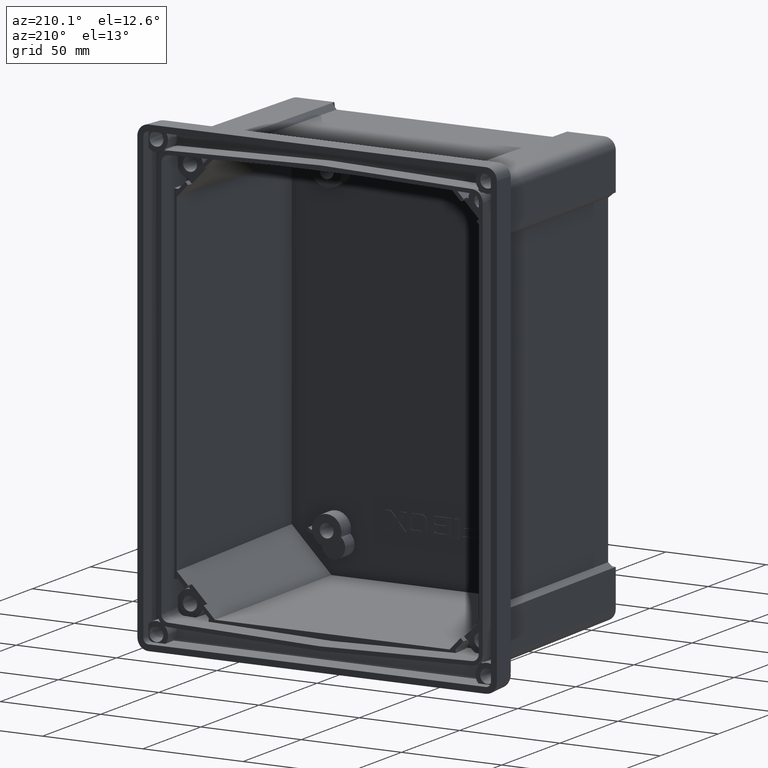
[diagram: clean part render]
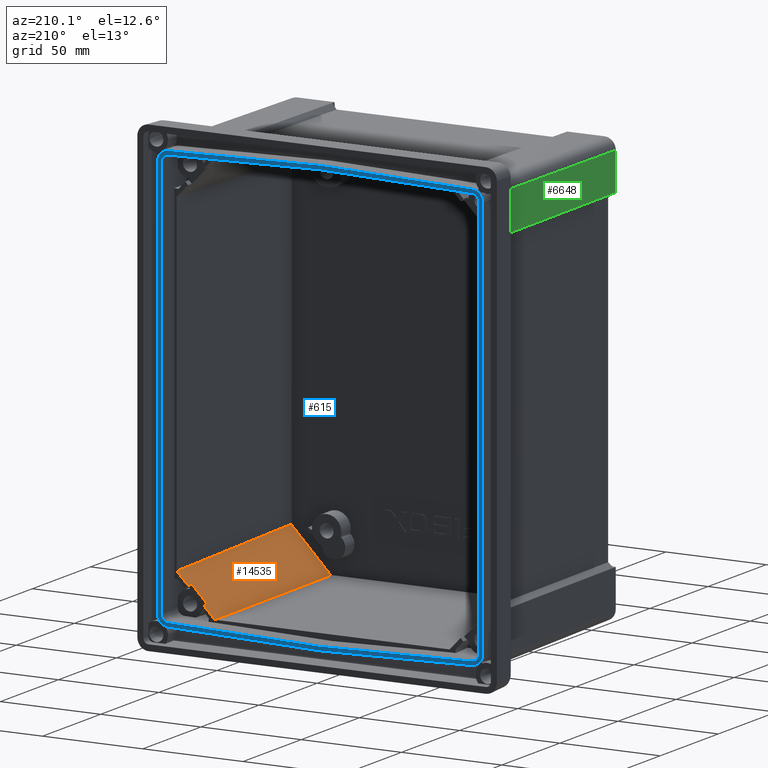
[diagram: same view with three faces highlighted in distinct colors, each labeled with its STEP entity id]
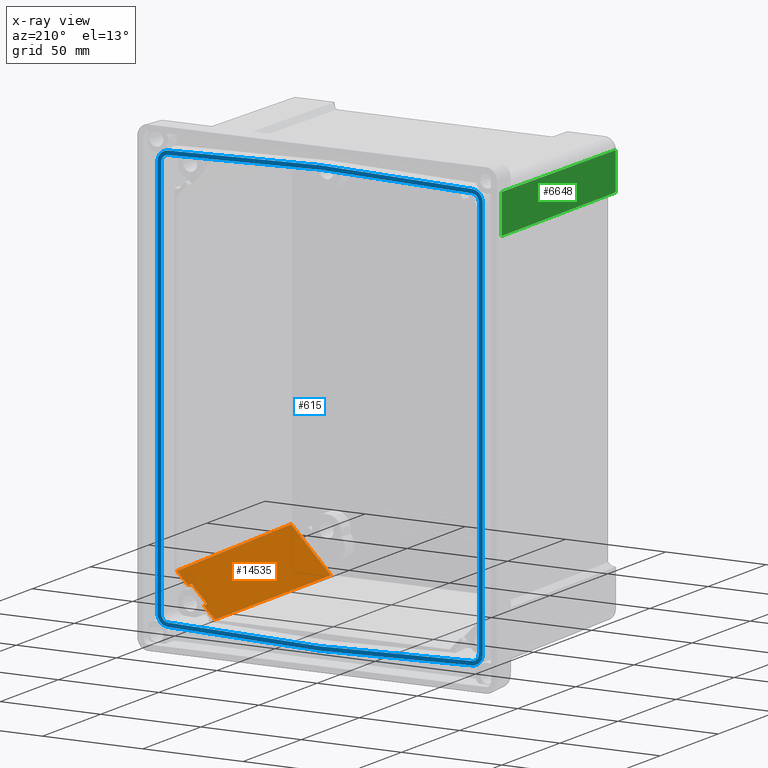
[diagram: x-ray of the same camera — body ghosted, the three highlighted faces saturated]
A machine part, auxiliary view with three faces highlighted in distinct colors.
The next image is the same camera in x-ray (body ghosted, the three faces saturated) — at least one of them is partly hidden behind the body in this view.
Their STEP definitions:

[orange] entity #14535 — the highlighted planar face has unit normal (-0.7149, 0.0262, 0.6987).
#189 = VECTOR ( 'NONE', #8761, 1000.000000000000000 ) ;
#374 = CARTESIAN_POINT ( 'NONE',  ( 71.74645088788184900, -15.93125922395892000, -88.50474010267190300 ) ) ;
#436 = ORIENTED_EDGE ( 'NONE', *, *, #12960, .T. ) ;
#681 = LINE ( 'NONE', #2240, #15660 ) ;
#691 = LINE ( 'NONE', #13967, #13364 ) ;
#1418 = CARTESIAN_POINT ( 'NONE',  ( 77.91777170987691600, -12.93125922395891800, -82.30229086239377500 ) ) ;
#1467 = EDGE_CURVE ( 'NONE', #4963, #8883, #8452, .T. ) ;
#1985 = DIRECTION ( 'NONE',  ( -0.6989326026834157300, 0.0000000000000000000, -0.7151875396748649200 ) ) ;
#2142 = ORIENTED_EDGE ( 'NONE', *, *, #12260, .F. ) ;
#2240 = CARTESIAN_POINT ( 'NONE',  ( 67.77086531583226800, -108.5453820889968300, -89.10294242560385700 ) ) ;
#2428 = DIRECTION ( 'NONE',  ( 0.6989326026834152800, 0.0000000000000000000, 0.7151875396748653700 ) ) ;
#2908 = DIRECTION ( 'NONE',  ( -0.6989326026834157300, 0.0000000000000000000, -0.7151875396748649200 ) ) ;
#3169 = EDGE_CURVE ( 'NONE', #4371, #8883, #691, .T. ) ;
#3431 = VERTEX_POINT ( 'NONE', #13946 ) ;
#3542 = DIRECTION ( 'NONE',  ( -0.005885744236630351600, 0.9990381704227669900, -0.04345218122386270600 ) ) ;
#3786 = EDGE_CURVE ( 'NONE', #15560, #9001, #681, .T. ) ;
#4035 = LINE ( 'NONE', #14150, #9812 ) ;
#4114 = CARTESIAN_POINT ( 'NONE',  ( 58.51397801082989500, -12.93125922395891600, -102.1573547450924600 ) ) ;
#4243 = VERTEX_POINT ( 'NONE', #13128 ) ;
#4371 = VERTEX_POINT ( 'NONE', #4944 ) ;
#4787 = CARTESIAN_POINT ( 'NONE',  ( 77.51911382571967100, -10.21845775423358100, -82.81185695860109800 ) ) ;
#4872 = DIRECTION ( 'NONE',  ( -0.7149424627672257300, 0.02617694830787320800, 0.6986930959367074800 ) ) ;
#4938 = ORIENTED_EDGE ( 'NONE', *, *, #3169, .F. ) ;
#4944 = CARTESIAN_POINT ( 'NONE',  ( 76.13977366615753800, -109.0000000000000000, -80.52236750497517900 ) ) ;
#4960 = PLANE ( 'NONE',  #6419 ) ;
#4963 = VERTEX_POINT ( 'NONE', #4114 ) ;
#5277 = VECTOR ( 'NONE', #2428, 1000.000000000000000 ) ;
#5519 = DIRECTION ( 'NONE',  ( 0.6989326026834152800, 0.0000000000000000000, 0.7151875396748653700 ) ) ;
#6259 = CARTESIAN_POINT ( 'NONE',  ( 56.36925812659018900, -106.3103238748581700, -100.8534523053544900 ) ) ;
#6280 = CARTESIAN_POINT ( 'NONE',  ( 76.94623611792631800, -109.0000000000000000, -79.69714931583038700 ) ) ;
#6419 = AXIS2_PLACEMENT_3D ( 'NONE', #6280, #4872, #9756 ) ;
#6437 = ORIENTED_EDGE ( 'NONE', *, *, #3786, .T. ) ;
#6587 = EDGE_CURVE ( 'NONE', #4243, #4371, #11541, .T. ) ;
#6766 = CARTESIAN_POINT ( 'NONE',  ( 64.04718476576837800, -12.93125922395892000, -96.49546329749999500 ) ) ;
#6885 = ORIENTED_EDGE ( 'NONE', *, *, #1467, .T. ) ;
#7584 = EDGE_LOOP ( 'NONE', ( #11467, #8855, #6885, #4938, #7964, #2142, #6437, #436 ) ) ;
#7883 = LINE ( 'NONE', #8518, #10369 ) ;
#7964 = ORIENTED_EDGE ( 'NONE', *, *, #6587, .F. ) ;
#8452 = LINE ( 'NONE', #6259, #189 ) ;
#8484 = EDGE_CURVE ( 'NONE', #3431, #15772, #7883, .T. ) ;
#8501 = FACE_OUTER_BOUND ( 'NONE', #7584, .T. ) ;
#8518 = CARTESIAN_POINT ( 'NONE',  ( 64.61681994109977700, -109.6203541781330100, -92.29006634600800400 ) ) ;
#8525 = DIRECTION ( 'NONE',  ( -0.01395843242726290700, -0.9996341170375635500, 0.02316881996788464100 ) ) ;
#8761 = DIRECTION ( 'NONE',  ( -0.02295959514164697500, -0.9996389434559233000, 0.01395849982115559100 ) ) ;
#8855 = ORIENTED_EDGE ( 'NONE', *, *, #15817, .F. ) ;
#8883 = VERTEX_POINT ( 'NONE', #15689 ) ;
#9001 = VERTEX_POINT ( 'NONE', #374 ) ;
#9687 = LINE ( 'NONE', #11697, #15257 ) ;
#9756 = DIRECTION ( 'NONE',  ( 0.6989326026834157300, 0.0000000000000000000, 0.7151875396748649200 ) ) ;
#9759 = DIRECTION ( 'NONE',  ( -0.04288595471862213800, -0.9990591341861797500, -0.006453006046253639700 ) ) ;
#9812 = VECTOR ( 'NONE', #5519, 1000.000000000000000 ) ;
#10369 = VECTOR ( 'NONE', #3542, 1000.000000000000100 ) ;
#11467 = ORIENTED_EDGE ( 'NONE', *, *, #8484, .T. ) ;
#11541 = LINE ( 'NONE', #4787, #12111 ) ;
#11697 = CARTESIAN_POINT ( 'NONE',  ( 78.68921305288319000, -15.93125922395892300, -81.40051149426037100 ) ) ;
#12111 = VECTOR ( 'NONE', #8525, 1000.000000000000000 ) ;
#12260 = EDGE_CURVE ( 'NONE', #15560, #4243, #13363, .T. ) ;
#12960 = EDGE_CURVE ( 'NONE', #9001, #3431, #9687, .T. ) ;
#13128 = CARTESIAN_POINT ( 'NONE',  ( 77.48123350995378200, -12.93125922395891800, -82.74898154469769900 ) ) ;
#13172 = CARTESIAN_POINT ( 'NONE',  ( 71.87522991582264400, -12.93125922395892000, -88.48536285314149600 ) ) ;
#13363 = LINE ( 'NONE', #1418, #5277 ) ;
#13364 = VECTOR ( 'NONE', #2908, 1000.000000000000000 ) ;
#13946 = CARTESIAN_POINT ( 'NONE',  ( 64.06485899807766800, -15.93125922395892000, -96.36498125233806900 ) ) ;
#13967 = CARTESIAN_POINT ( 'NONE',  ( 76.94623611792631800, -109.0000000000000000, -79.69714931583038700 ) ) ;
#14150 = CARTESIAN_POINT ( 'NONE',  ( 77.91777170987691600, -12.93125922395891800, -82.30229086239377500 ) ) ;
#14535 = ADVANCED_FACE ( 'NONE', ( #8501 ), #4960, .T. ) ;
#15257 = VECTOR ( 'NONE', #1985, 1000.000000000000000 ) ;
#15560 = VERTEX_POINT ( 'NONE', #13172 ) ;
#15660 = VECTOR ( 'NONE', #9759, 1000.000000000000200 ) ;
#15689 = CARTESIAN_POINT ( 'NONE',  ( 56.30748194700083800, -109.0000000000000000, -100.8158949012962500 ) ) ;
#15772 = VERTEX_POINT ( 'NONE', #6766 ) ;
#15817 = EDGE_CURVE ( 'NONE', #4963, #15772, #4035, .T. ) ;

[blue] entity #615 — the highlighted planar face has unit normal (0, 1, 0).
#35 = LINE ( 'NONE', #4546, #6170 ) ;
#86 = ORIENTED_EDGE ( 'NONE', *, *, #6942, .T. ) ;
#95 = DIRECTION ( 'NONE',  ( -1.344095671459027500E-016, -0.0000000000000000000, 1.000000000000000000 ) ) ;
#323 = CARTESIAN_POINT ( 'NONE',  ( -81.11058033933063900, -2.499999999999999600, -102.9808733207594600 ) ) ;
#418 = ORIENTED_EDGE ( 'NONE', *, *, #11736, .F. ) ;
#426 = VECTOR ( 'NONE', #8104, 1000.000000000000100 ) ;
#615 = ADVANCED_FACE ( 'NONE', ( #11432, #12967 ), #7277, .T. ) ;
#784 = VECTOR ( 'NONE', #95, 1000.000000000000000 ) ;
#832 = EDGE_CURVE ( 'NONE', #9514, #15160, #1320, .T. ) ;
#915 = VERTEX_POINT ( 'NONE', #13117 ) ;
#954 = ORIENTED_EDGE ( 'NONE', *, *, #10106, .T. ) ;
#1006 = DIRECTION ( 'NONE',  ( 0.0000000000000000000, 1.000000000000000000, 0.0000000000000000000 ) ) ;
#1062 = CARTESIAN_POINT ( 'NONE',  ( -79.14550110882234400, -2.500000000000000000, 99.85953711070047200 ) ) ;
#1075 = CARTESIAN_POINT ( 'NONE',  ( -84.69206727293830300, -2.500000000000000000, -105.0875200521296900 ) ) ;
#1083 = CARTESIAN_POINT ( 'NONE',  ( 4.614817187574832200E-014, -2.500000000000000000, 107.3052598832712100 ) ) ;
#1085 = EDGE_CURVE ( 'NONE', #9514, #11582, #12428, .T. ) ;
#1320 = LINE ( 'NONE', #12587, #14379 ) ;
#1371 = VERTEX_POINT ( 'NONE', #14964 ) ;
#1455 = CARTESIAN_POINT ( 'NONE',  ( -81.11058033933058200, -2.500000000000000000, -99.82670566325201400 ) ) ;
#1541 = ORIENTED_EDGE ( 'NONE', *, *, #1085, .T. ) ;
#1821 = ORIENTED_EDGE ( 'NONE', *, *, #7306, .T. ) ;
#1865 = ORIENTED_EDGE ( 'NONE', *, *, #14894, .T. ) ;
#1945 = CARTESIAN_POINT ( 'NONE',  ( 79.14550110882231600, -2.500000000000000000, 99.85953711070051500 ) ) ;
#1952 = CARTESIAN_POINT ( 'NONE',  ( 75.75781630182584100, -2.500000000000000000, -105.3214716473387000 ) ) ;
#2113 = CARTESIAN_POINT ( 'NONE',  ( 81.11058033933061000, -2.500000000000000000, -99.82670566325204200 ) ) ;
#2258 = LINE ( 'NONE', #13354, #12056 ) ;
#2670 = VERTEX_POINT ( 'NONE', #9372 ) ;
#2846 = VERTEX_POINT ( 'NONE', #10839 ) ;
#3003 = CARTESIAN_POINT ( 'NONE',  ( 81.11058033933058200, -2.500000000000000000, 102.9808733207595400 ) ) ;
#3110 = CARTESIAN_POINT ( 'NONE',  ( 79.14550110882234400, -2.500000000000000000, -99.85953711070045800 ) ) ;
#3121 = CARTESIAN_POINT ( 'NONE',  ( -79.14550110882231600, -2.500000000000000000, -103.2500000000000100 ) ) ;
#3155 = CARTESIAN_POINT ( 'NONE',  ( -81.11058033933061000, -2.500000000000000000, 102.9808733207595000 ) ) ;
#3271 = DIRECTION ( 'NONE',  ( 1.344095671459027500E-016, -0.0000000000000000000, -1.000000000000000000 ) ) ;
#3315 = CARTESIAN_POINT ( 'NONE',  ( 75.73919672131934500, -2.500000000000000000, -103.3562063733010600 ) ) ;
#3374 = CARTESIAN_POINT ( 'NONE',  ( 75.75781630182584100, -2.500000000000000000, -105.3214716473387000 ) ) ;
#3408 = CARTESIAN_POINT ( 'NONE',  ( 75.73919672131934500, -2.500000000000000000, -103.3562063733010600 ) ) ;
#3470 = DIRECTION ( 'NONE',  ( 0.9996573249755572600, -0.0000000000000000000, 0.02617694830787358300 ) ) ;
#3536 = ORIENTED_EDGE ( 'NONE', *, *, #5651, .T. ) ;
#3554 = CARTESIAN_POINT ( 'NONE',  ( 79.14550110882230200, -2.500000000000000900, 101.8667347109325000 ) ) ;
#3630 = LINE ( 'NONE', #3753, #784 ) ;
#3753 = CARTESIAN_POINT ( 'NONE',  ( 79.14550110882231600, -2.500000000000000000, 103.2500000000000300 ) ) ;
#3828 = CARTESIAN_POINT ( 'NONE',  ( 75.75781630182585500, -2.500000000000000000, 105.3214716473387100 ) ) ;
#3956 =( BOUNDED_CURVE ( )  B_SPLINE_CURVE ( 3, ( #3315, #8202, #10492, #3110 ),
 .UNSPECIFIED., .F., .F. ) 
 B_SPLINE_CURVE_WITH_KNOTS ( ( 4, 4 ),
 ( 5.511470371821732600, 7.054900242537451400 ),
 .UNSPECIFIED. ) 
 CURVE ( )  GEOMETRIC_REPRESENTATION_ITEM ( )  RATIONAL_B_SPLINE_CURVE ( ( 1.000000000000000000, 0.8111438583819901000, 0.8111438583819901000, 1.000000000000000000 ) ) 
 REPRESENTATION_ITEM ( '' )  );
#4183 = CARTESIAN_POINT ( 'NONE',  ( -79.12849778366538100, -2.500000000000000000, -103.2674544015081200 ) ) ;
#4195 = CARTESIAN_POINT ( 'NONE',  ( -75.75781630182589800, -2.500000000000000000, 105.3214716473386700 ) ) ;
#4244 = ORIENTED_EDGE ( 'NONE', *, *, #6089, .T. ) ;
#4546 = CARTESIAN_POINT ( 'NONE',  ( 0.0004570595889422033800, -2.500000000000000000, -105.3394950698322200 ) ) ;
#4617 = CARTESIAN_POINT ( 'NONE',  ( -73.45557194546358900, -2.500000000000000000, -109.2287617290549200 ) ) ;
#4637 = CARTESIAN_POINT ( 'NONE',  ( 75.73919672131931700, -2.500000000000000000, 103.3562063733010800 ) ) ;
#4899 = LINE ( 'NONE', #5782, #10286 ) ;
#5347 = VERTEX_POINT ( 'NONE', #11281 ) ;
#5473 = CARTESIAN_POINT ( 'NONE',  ( -75.73919672131933100, -2.500000000000000000, -103.3562063733010600 ) ) ;
#5474 = VECTOR ( 'NONE', #13206, 1000.000000000000100 ) ;
#5534 = ORIENTED_EDGE ( 'NONE', *, *, #12142, .F. ) ;
#5651 = EDGE_CURVE ( 'NONE', #6929, #9437, #3956, .T. ) ;
#5660 = CARTESIAN_POINT ( 'NONE',  ( -78.91090310485419900, -2.500000000000000000, 105.2389051636137400 ) ) ;
#5782 = CARTESIAN_POINT ( 'NONE',  ( -79.07149533135228100, -2.500000000000000000, 105.2346999081660400 ) ) ;
#5800 = CARTESIAN_POINT ( 'NONE',  ( -75.75781630182589800, -2.500000000000000000, 105.3214716473386700 ) ) ;
#5883 = VECTOR ( 'NONE', #11965, 1000.000000000000100 ) ;
#6073 = LINE ( 'NONE', #4617, #5474 ) ;
#6089 = EDGE_CURVE ( 'NONE', #9428, #13420, #11346, .T. ) ;
#6162 = VERTEX_POINT ( 'NONE', #3828 ) ;
#6170 = VECTOR ( 'NONE', #3470, 1000.000000000000100 ) ;
#6174 = CARTESIAN_POINT ( 'NONE',  ( -77.74570650506460400, -2.500000000000000000, -103.3036640654761400 ) ) ;
#6295 = EDGE_CURVE ( 'NONE', #5347, #15160, #15893, .T. ) ;
#6356 = VERTEX_POINT ( 'NONE', #1952 ) ;
#6399 = ORIENTED_EDGE ( 'NONE', *, *, #832, .F. ) ;
#6475 = CARTESIAN_POINT ( 'NONE',  ( -75.75781630182586900, -2.500000000000000000, -105.3214716473386800 ) ) ;
#6753 = EDGE_CURVE ( 'NONE', #13420, #915, #14035, .T. ) ;
#6929 = VERTEX_POINT ( 'NONE', #3408 ) ;
#6942 = EDGE_CURVE ( 'NONE', #915, #6929, #35, .T. ) ;
#7103 = EDGE_LOOP ( 'NONE', ( #418, #7111, #6399, #1541, #5534, #10176, #954, #14847, #1821, #12936 ) ) ;
#7111 = ORIENTED_EDGE ( 'NONE', *, *, #6295, .T. ) ;
#7115 = CARTESIAN_POINT ( 'NONE',  ( 81.11058033933063900, -2.500000000000000000, -102.9808733207595000 ) ) ;
#7258 = ORIENTED_EDGE ( 'NONE', *, *, #14416, .T. ) ;
#7277 = PLANE ( 'NONE',  #8254 ) ;
#7306 = EDGE_CURVE ( 'NONE', #13411, #6356, #10977, .T. ) ;
#7500 = CARTESIAN_POINT ( 'NONE',  ( -75.73919672131933100, -2.500000000000000000, -103.3562063733010600 ) ) ;
#7662 = CARTESIAN_POINT ( 'NONE',  ( -78.91090310485419900, -2.499999999999999600, -105.2389051636137900 ) ) ;
#7831 = EDGE_CURVE ( 'NONE', #8235, #15554, #10013, .T. ) ;
#8104 = DIRECTION ( 'NONE',  ( -0.9996573249755572600, -0.0000000000000000000, 0.02617694830787323200 ) ) ;
#8202 = CARTESIAN_POINT ( 'NONE',  ( 77.74570650506464600, -2.500000000000000400, -103.3036640654761000 ) ) ;
#8235 = VERTEX_POINT ( 'NONE', #12763 ) ;
#8254 = AXIS2_PLACEMENT_3D ( 'NONE', #12048, #1006, #9749 ) ;
#8553 = EDGE_CURVE ( 'NONE', #9437, #10525, #3630, .T. ) ;
#8678 = DIRECTION ( 'NONE',  ( -1.344095671459027500E-016, 0.0000000000000000000, 1.000000000000000000 ) ) ;
#9120 =( BOUNDED_CURVE ( )  B_SPLINE_CURVE ( 3, ( #12006, #3554, #14515, #4637 ),
 .UNSPECIFIED., .F., .F. ) 
 B_SPLINE_CURVE_WITH_KNOTS ( ( 4, 4 ),
 ( 5.511470371821732600, 7.054900242537436300 ),
 .UNSPECIFIED. ) 
 CURVE ( )  GEOMETRIC_REPRESENTATION_ITEM ( )  RATIONAL_B_SPLINE_CURVE ( ( 1.000000000000000000, 0.8111438583819936500, 0.8111438583819936500, 1.000000000000000000 ) ) 
 REPRESENTATION_ITEM ( '' )  );
#9372 = CARTESIAN_POINT ( 'NONE',  ( 81.11058033933058200, -2.500000000000000000, 99.82670566325211300 ) ) ;
#9428 = VERTEX_POINT ( 'NONE', #12468 ) ;
#9437 = VERTEX_POINT ( 'NONE', #11129 ) ;
#9514 = VERTEX_POINT ( 'NONE', #15248 ) ;
#9630 = ORIENTED_EDGE ( 'NONE', *, *, #8553, .T. ) ;
#9633 = CARTESIAN_POINT ( 'NONE',  ( 78.91090310485418500, -2.500000000000000000, -105.2389051636138100 ) ) ;
#9749 = DIRECTION ( 'NONE',  ( 0.0000000000000000000, -0.0000000000000000000, 1.000000000000000000 ) ) ;
#10008 = CARTESIAN_POINT ( 'NONE',  ( 81.11058033933058200, -2.500000000000000000, 107.3940813366482600 ) ) ;
#10013 = LINE ( 'NONE', #15804, #14427 ) ;
#10106 = EDGE_CURVE ( 'NONE', #6162, #2670, #12349, .T. ) ;
#10152 = EDGE_CURVE ( 'NONE', #6162, #13983, #2258, .T. ) ;
#10176 = ORIENTED_EDGE ( 'NONE', *, *, #10152, .F. ) ;
#10218 = LINE ( 'NONE', #10666, #426 ) ;
#10286 = VECTOR ( 'NONE', #15621, 1000.000000000000100 ) ;
#10404 = CARTESIAN_POINT ( 'NONE',  ( 78.91090310485415700, -2.500000000000000000, 105.2389051636137700 ) ) ;
#10471 = CARTESIAN_POINT ( 'NONE',  ( -79.14550110882235900, -2.500000000000000400, 101.8667347109324600 ) ) ;
#10492 = CARTESIAN_POINT ( 'NONE',  ( 79.14550110882235900, -2.500000000000000400, -101.8667347109324800 ) ) ;
#10525 = VERTEX_POINT ( 'NONE', #1945 ) ;
#10576 = CARTESIAN_POINT ( 'NONE',  ( 81.11058033933061000, -2.500000000000000000, -99.82670566325204200 ) ) ;
#10666 = CARTESIAN_POINT ( 'NONE',  ( 0.0004570595889164016500, -2.500000000000000000, 105.3394950698322200 ) ) ;
#10705 = VERTEX_POINT ( 'NONE', #1062 ) ;
#10779 = VECTOR ( 'NONE', #12816, 1000.000000000000100 ) ;
#10827 = EDGE_CURVE ( 'NONE', #13411, #2670, #13397, .T. ) ;
#10839 = CARTESIAN_POINT ( 'NONE',  ( 75.73919672131931700, -2.500000000000000000, 103.3562063733010800 ) ) ;
#10896 = DIRECTION ( 'NONE',  ( -0.9996573249755572600, 0.0000000000000000000, -0.02617694830787375600 ) ) ;
#10928 = DIRECTION ( 'NONE',  ( -0.9996573249755572600, 0.0000000000000000000, 0.02617694830787323200 ) ) ;
#10977 =( BOUNDED_CURVE ( )  B_SPLINE_CURVE ( 3, ( #2113, #7115, #9633, #3374 ),
 .UNSPECIFIED., .F., .F. ) 
 B_SPLINE_CURVE_WITH_KNOTS ( ( 4, 4 ),
 ( 5.511470371821723700, 7.054900242537446100 ),
 .UNSPECIFIED. ) 
 CURVE ( )  GEOMETRIC_REPRESENTATION_ITEM ( )  RATIONAL_B_SPLINE_CURVE ( ( 1.000000000000000000, 0.8111438583819892100, 0.8111438583819892100, 1.000000000000000000 ) ) 
 REPRESENTATION_ITEM ( '' )  );
#11129 = CARTESIAN_POINT ( 'NONE',  ( 79.14550110882234400, -2.500000000000000000, -99.85953711070045800 ) ) ;
#11209 = ORIENTED_EDGE ( 'NONE', *, *, #15487, .T. ) ;
#11281 = CARTESIAN_POINT ( 'NONE',  ( -75.75781630182586900, -2.500000000000000000, -105.3214716473386800 ) ) ;
#11346 =( BOUNDED_CURVE ( )  B_SPLINE_CURVE ( 3, ( #14937, #14777, #6174, #7500 ),
 .UNSPECIFIED., .F., .F. ) 
 B_SPLINE_CURVE_WITH_KNOTS ( ( 4, 4 ),
 ( 5.511470371821737000, 7.054900242537436300 ),
 .UNSPECIFIED. ) 
 CURVE ( )  GEOMETRIC_REPRESENTATION_ITEM ( )  RATIONAL_B_SPLINE_CURVE ( ( 1.000000000000000000, 0.8111438583819945400, 0.8111438583819945400, 1.000000000000000000 ) ) 
 REPRESENTATION_ITEM ( '' )  );
#11353 = CARTESIAN_POINT ( 'NONE',  ( -81.11058033933058200, -2.500000000000000000, -99.82670566325201400 ) ) ;
#11355 = ORIENTED_EDGE ( 'NONE', *, *, #7831, .T. ) ;
#11432 = FACE_BOUND ( 'NONE', #14767, .T. ) ;
#11582 = VERTEX_POINT ( 'NONE', #5800 ) ;
#11736 = EDGE_CURVE ( 'NONE', #5347, #1371, #12208, .T. ) ;
#11779 = CARTESIAN_POINT ( 'NONE',  ( -81.11058033933061000, -2.500000000000000000, 99.82670566325207100 ) ) ;
#11847 = CARTESIAN_POINT ( 'NONE',  ( -77.74570650506466100, -2.500000000000000400, 103.3036640654760700 ) ) ;
#11965 = DIRECTION ( 'NONE',  ( 0.9996573249755572600, 0.0000000000000000000, -0.02617694830787340900 ) ) ;
#12006 = CARTESIAN_POINT ( 'NONE',  ( 79.14550110882231600, -2.500000000000000000, 99.85953711070051500 ) ) ;
#12048 = CARTESIAN_POINT ( 'NONE',  ( -81.12804072407648400, -2.500000000000000000, 109.4471387647683300 ) ) ;
#12056 = VECTOR ( 'NONE', #10928, 1000.000000000000100 ) ;
#12142 = EDGE_CURVE ( 'NONE', #13983, #11582, #4899, .T. ) ;
#12156 = EDGE_CURVE ( 'NONE', #10525, #2846, #9120, .T. ) ;
#12208 = LINE ( 'NONE', #1075, #5883 ) ;
#12349 =( BOUNDED_CURVE ( )  B_SPLINE_CURVE ( 3, ( #14040, #10404, #3003, #15384 ),
 .UNSPECIFIED., .F., .F. ) 
 B_SPLINE_CURVE_WITH_KNOTS ( ( 4, 4 ),
 ( 5.511470371821734400, 7.054900242537436300 ),
 .UNSPECIFIED. ) 
 CURVE ( )  GEOMETRIC_REPRESENTATION_ITEM ( )  RATIONAL_B_SPLINE_CURVE ( ( 1.000000000000000000, 0.8111438583819939900, 0.8111438583819939900, 1.000000000000000000 ) ) 
 REPRESENTATION_ITEM ( '' )  );
#12428 =( BOUNDED_CURVE ( )  B_SPLINE_CURVE ( 3, ( #11779, #3155, #5660, #4195 ),
 .UNSPECIFIED., .F., .F. ) 
 B_SPLINE_CURVE_WITH_KNOTS ( ( 4, 4 ),
 ( 5.511470371821737000, 7.054900242537439000 ),
 .UNSPECIFIED. ) 
 CURVE ( )  GEOMETRIC_REPRESENTATION_ITEM ( )  RATIONAL_B_SPLINE_CURVE ( ( 1.000000000000000000, 0.8111438583819939900, 0.8111438583819939900, 1.000000000000000000 ) ) 
 REPRESENTATION_ITEM ( '' )  );
#12468 = CARTESIAN_POINT ( 'NONE',  ( -79.14550110882231600, -2.500000000000000000, -99.85953711070051500 ) ) ;
#12526 = EDGE_CURVE ( 'NONE', #1371, #6356, #6073, .T. ) ;
#12587 = CARTESIAN_POINT ( 'NONE',  ( -81.11058033933061000, -2.500000000000000000, 107.3940813366482300 ) ) ;
#12611 = VECTOR ( 'NONE', #8678, 1000.000000000000000 ) ;
#12763 = CARTESIAN_POINT ( 'NONE',  ( -1.023257634194624200E-014, -2.500000000000000000, 105.3395070383587800 ) ) ;
#12816 = DIRECTION ( 'NONE',  ( 0.9996573249755572600, -0.0000000000000000000, -0.02617694830787340600 ) ) ;
#12922 = CARTESIAN_POINT ( 'NONE',  ( -79.14550110882234400, -2.500000000000000000, 99.85953711070047200 ) ) ;
#12936 = ORIENTED_EDGE ( 'NONE', *, *, #12526, .F. ) ;
#12967 = FACE_OUTER_BOUND ( 'NONE', #7103, .T. ) ;
#13117 = CARTESIAN_POINT ( 'NONE',  ( 1.751260184169978200E-014, -2.500000000000000000, -105.3395070383587800 ) ) ;
#13206 = DIRECTION ( 'NONE',  ( 0.9996573249755572600, -0.0000000000000000000, 0.02617694830787358300 ) ) ;
#13354 = CARTESIAN_POINT ( 'NONE',  ( -79.07614388704965300, -2.500000000000000000, 109.3759415850912300 ) ) ;
#13397 = LINE ( 'NONE', #10008, #12611 ) ;
#13401 = ORIENTED_EDGE ( 'NONE', *, *, #12156, .T. ) ;
#13411 = VERTEX_POINT ( 'NONE', #10576 ) ;
#13420 = VERTEX_POINT ( 'NONE', #5473 ) ;
#13840 =( BOUNDED_CURVE ( )  B_SPLINE_CURVE ( 3, ( #15335, #11847, #10471, #12922 ),
 .UNSPECIFIED., .F., .F. ) 
 B_SPLINE_CURVE_WITH_KNOTS ( ( 4, 4 ),
 ( 5.511470371821736200, 7.054900242537435400 ),
 .UNSPECIFIED. ) 
 CURVE ( )  GEOMETRIC_REPRESENTATION_ITEM ( )  RATIONAL_B_SPLINE_CURVE ( ( 1.000000000000000000, 0.8111438583819945400, 0.8111438583819945400, 1.000000000000000000 ) ) 
 REPRESENTATION_ITEM ( '' )  );
#13983 = VERTEX_POINT ( 'NONE', #1083 ) ;
#14035 = LINE ( 'NONE', #4183, #10779 ) ;
#14040 = CARTESIAN_POINT ( 'NONE',  ( 75.75781630182585500, -2.500000000000000000, 105.3214716473387100 ) ) ;
#14156 = ORIENTED_EDGE ( 'NONE', *, *, #6753, .T. ) ;
#14379 = VECTOR ( 'NONE', #15162, 1000.000000000000000 ) ;
#14400 = CARTESIAN_POINT ( 'NONE',  ( -75.73919672131936000, -2.500000000000000000, 103.3562063733010500 ) ) ;
#14416 = EDGE_CURVE ( 'NONE', #15554, #10705, #13840, .T. ) ;
#14427 = VECTOR ( 'NONE', #10896, 1000.000000000000100 ) ;
#14515 = CARTESIAN_POINT ( 'NONE',  ( 77.74570650506460400, -2.500000000000000900, 103.3036640654761600 ) ) ;
#14767 = EDGE_LOOP ( 'NONE', ( #11355, #7258, #1865, #4244, #14156, #86, #3536, #9630, #13401, #11209 ) ) ;
#14777 = CARTESIAN_POINT ( 'NONE',  ( -79.14550110882231600, -2.500000000000000000, -101.8667347109325200 ) ) ;
#14791 = LINE ( 'NONE', #3121, #15793 ) ;
#14847 = ORIENTED_EDGE ( 'NONE', *, *, #10827, .F. ) ;
#14894 = EDGE_CURVE ( 'NONE', #10705, #9428, #14791, .T. ) ;
#14937 = CARTESIAN_POINT ( 'NONE',  ( -79.14550110882231600, -2.500000000000000000, -99.85953711070051500 ) ) ;
#14964 = CARTESIAN_POINT ( 'NONE',  ( 6.087984087251128900E-013, -2.500000000000000000, -107.3052598832711900 ) ) ;
#15160 = VERTEX_POINT ( 'NONE', #1455 ) ;
#15162 = DIRECTION ( 'NONE',  ( 1.344095671459028000E-016, 0.0000000000000000000, -1.000000000000000000 ) ) ;
#15248 = CARTESIAN_POINT ( 'NONE',  ( -81.11058033933061000, -2.500000000000000000, 99.82670566325207100 ) ) ;
#15335 = CARTESIAN_POINT ( 'NONE',  ( -75.73919672131936000, -2.500000000000000000, 103.3562063733010500 ) ) ;
#15384 = CARTESIAN_POINT ( 'NONE',  ( 81.11058033933058200, -2.500000000000000000, 99.82670566325211300 ) ) ;
#15487 = EDGE_CURVE ( 'NONE', #2846, #8235, #10218, .T. ) ;
#15554 = VERTEX_POINT ( 'NONE', #14400 ) ;
#15621 = DIRECTION ( 'NONE',  ( -0.9996573249755572600, 0.0000000000000000000, -0.02617694830787375600 ) ) ;
#15793 = VECTOR ( 'NONE', #3271, 1000.000000000000000 ) ;
#15804 = CARTESIAN_POINT ( 'NONE',  ( -79.12849778366540900, -2.500000000000000000, 103.2674544015080900 ) ) ;
#15893 =( BOUNDED_CURVE ( )  B_SPLINE_CURVE ( 3, ( #6475, #7662, #323, #11353 ),
 .UNSPECIFIED., .F., .F. ) 
 B_SPLINE_CURVE_WITH_KNOTS ( ( 4, 4 ),
 ( 5.511470371821734400, 7.054900242537448700 ),
 .UNSPECIFIED. ) 
 CURVE ( )  GEOMETRIC_REPRESENTATION_ITEM ( )  RATIONAL_B_SPLINE_CURVE ( ( 1.000000000000000000, 0.8111438583819912100, 0.8111438583819912100, 1.000000000000000000 ) ) 
 REPRESENTATION_ITEM ( '' )  );

[green] entity #6648 — the highlighted planar face has unit normal (-1, -0.0087, 0).
#136 = EDGE_CURVE ( 'NONE', #9985, #5048, #10306, .T. ) ;
#145 = DIRECTION ( 'NONE',  ( 0.008726535498373953800, -0.9999619230641713100, 0.0000000000000000000 ) ) ;
#276 = DIRECTION ( 'NONE',  ( -0.008726266127677998300, 0.9999310562397356600, -0.007857165312980510600 ) ) ;
#371 = CARTESIAN_POINT ( 'NONE',  ( -83.09987327553885500, -15.28751252409200700, 82.85992828101751700 ) ) ;
#498 = VECTOR ( 'NONE', #7019, 1000.000000000000100 ) ;
#507 = DIRECTION ( 'NONE',  ( 1.718480545755721600E-015, 0.0000000000000000000, 1.000000000000000000 ) ) ;
#702 = CARTESIAN_POINT ( 'NONE',  ( -83.09445159342489300, -15.90877575895741500, 102.3446610165719100 ) ) ;
#788 = EDGE_CURVE ( 'NONE', #8069, #8646, #15555, .T. ) ;
#1167 = AXIS2_PLACEMENT_3D ( 'NONE', #12513, #12356, #145 ) ;
#1325 = VERTEX_POINT ( 'NONE', #12138 ) ;
#1703 = ORIENTED_EDGE ( 'NONE', *, *, #136, .F. ) ;
#1902 = ORIENTED_EDGE ( 'NONE', *, *, #12122, .F. ) ;
#2577 = CARTESIAN_POINT ( 'NONE',  ( -82.22969558024890100, -115.0000000000000000, 101.4799050033959000 ) ) ;
#2809 = ORIENTED_EDGE ( 'NONE', *, *, #3865, .F. ) ;
#3865 = EDGE_CURVE ( 'NONE', #8069, #1325, #13538, .T. ) ;
#5048 = VERTEX_POINT ( 'NONE', #10626 ) ;
#5215 = PLANE ( 'NONE',  #1167 ) ;
#6143 = ORIENTED_EDGE ( 'NONE', *, *, #788, .T. ) ;
#6648 = ADVANCED_FACE ( 'NONE', ( #10398 ), #5215, .T. ) ;
#7019 = DIRECTION ( 'NONE',  ( -0.008726531827785089700, 0.9999615024563481800, 0.0009171954542809199500 ) ) ;
#8069 = VERTEX_POINT ( 'NONE', #13737 ) ;
#8263 = CARTESIAN_POINT ( 'NONE',  ( -81.90246326613339500, -152.4971091531860700, 82.73407541767952000 ) ) ;
#8646 = VERTEX_POINT ( 'NONE', #2577 ) ;
#9206 = VECTOR ( 'NONE', #13992, 1000.000000000000100 ) ;
#9472 = EDGE_CURVE ( 'NONE', #8646, #5048, #11705, .T. ) ;
#9601 = ORIENTED_EDGE ( 'NONE', *, *, #9472, .T. ) ;
#9985 = VERTEX_POINT ( 'NONE', #371 ) ;
#10306 = LINE ( 'NONE', #15661, #10683 ) ;
#10398 = FACE_OUTER_BOUND ( 'NONE', #14294, .T. ) ;
#10626 = CARTESIAN_POINT ( 'NONE',  ( -83.09987327553882600, -15.28751252409202600, 102.3500826986858000 ) ) ;
#10683 = VECTOR ( 'NONE', #12034, 1000.000000000000000 ) ;
#11705 = LINE ( 'NONE', #702, #9206 ) ;
#12034 = DIRECTION ( 'NONE',  ( 1.668429395069013400E-015, -3.546356156050595000E-016, 1.000000000000000000 ) ) ;
#12122 = EDGE_CURVE ( 'NONE', #1325, #9985, #13741, .T. ) ;
#12138 = CARTESIAN_POINT ( 'NONE',  ( -82.24714931583042700, -113.0000000000000000, 82.77030338133967300 ) ) ;
#12324 = CARTESIAN_POINT ( 'NONE',  ( -82.24651552415957700, -113.0726253320256200, 82.77087404992335000 ) ) ;
#12356 = DIRECTION ( 'NONE',  ( -0.9999619230641713100, -0.008726535498373953800, 1.665271126101437300E-015 ) ) ;
#12513 = CARTESIAN_POINT ( 'NONE',  ( -83.11110922711589000, -14.00000000000000200, -116.3960342355969600 ) ) ;
#13440 = VECTOR ( 'NONE', #507, 1000.000000000000000 ) ;
#13538 = LINE ( 'NONE', #12324, #14674 ) ;
#13737 = CARTESIAN_POINT ( 'NONE',  ( -82.22969558024892900, -115.0000000000000000, 82.78601879544537200 ) ) ;
#13741 = LINE ( 'NONE', #8263, #498 ) ;
#13992 = DIRECTION ( 'NONE',  ( -0.008726203243944224300, 0.9999238504775704900, 0.008726203243944238200 ) ) ;
#14117 = CARTESIAN_POINT ( 'NONE',  ( -82.22969558024892900, -115.0000000000000000, 82.77030338133967300 ) ) ;
#14294 = EDGE_LOOP ( 'NONE', ( #6143, #9601, #1703, #1902, #2809 ) ) ;
#14674 = VECTOR ( 'NONE', #276, 1000.000000000000100 ) ;
#15555 = LINE ( 'NONE', #14117, #13440 ) ;
#15661 = CARTESIAN_POINT ( 'NONE',  ( -83.09987327553919600, -15.28751252409194800, -116.3960342355969600 ) ) ;